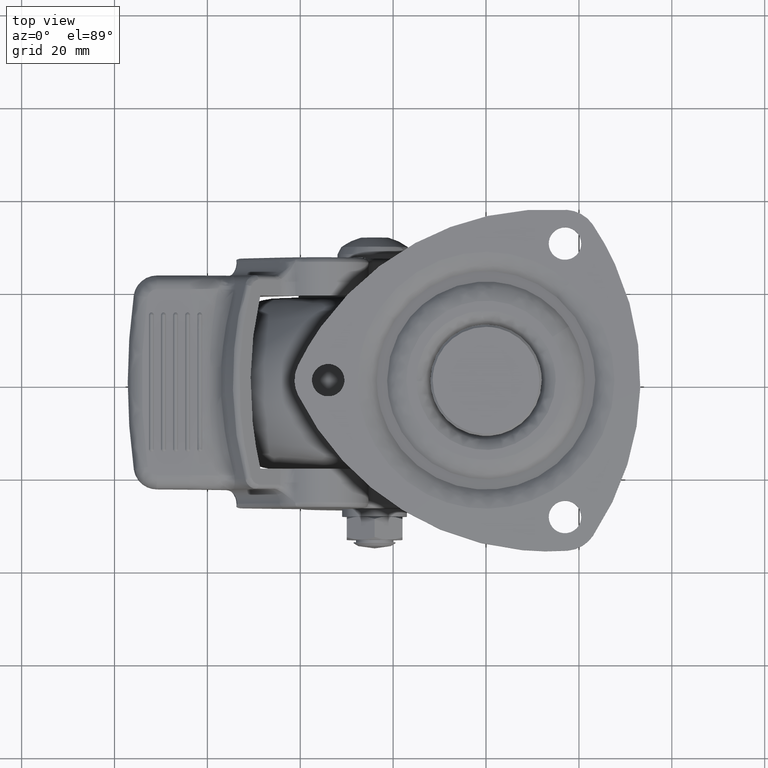
[diagram: clean part render]
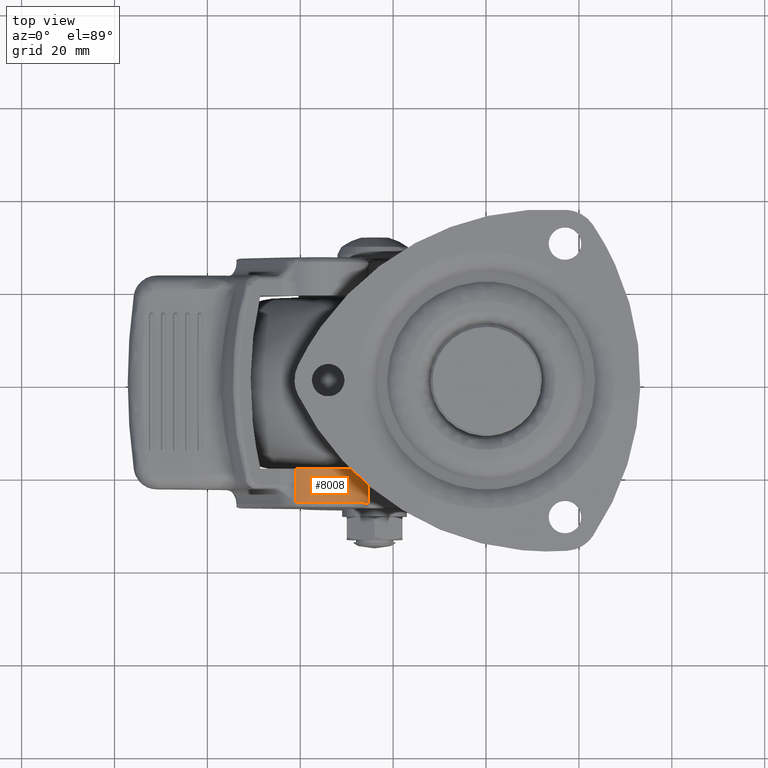
[diagram: same view with one face highlighted and labeled with its STEP entity id]
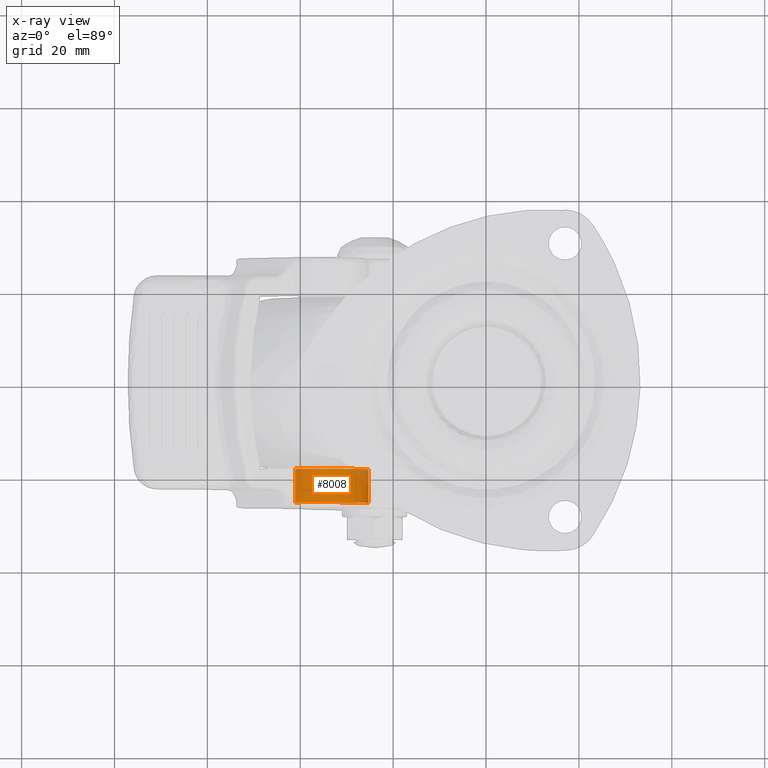
[diagram: x-ray of the same camera — body ghosted, the highlighted face saturated]
A machine part, top view. The second image highlights one B-rep face of the part: STEP entity #8008.
The next image is the same camera in x-ray: the body ghosted, the highlighted face saturated — about 6% of this face is hidden behind the body in this view.
In plain terms, the highlighted face is a freeform B-spline surface patch.
Its self-contained STEP definition (entity closure, byte-faithful):
#4443=CARTESIAN_POINT('',(-25.535646943787349,-25.899999999999999,-35.625522586329652));
#4444=VERTEX_POINT('',#4443);
#4458=CARTESIAN_POINT('',(-41.051118200829812,-25.899999999999999,-24.352873493018450));
#4459=VERTEX_POINT('',#4458);
#4460=CARTESIAN_POINT('',(-41.051118200829812,-25.899999999999999,-24.352873493018460));
#4461=CARTESIAN_POINT('',(-35.152821392697845,-25.899999999999999,-21.035278180738111));
#4462=CARTESIAN_POINT('',(-29.677960875453032,-25.899999999999999,-25.012996900003959));
#4463=CARTESIAN_POINT('',(-24.203100358208214,-25.899999999999999,-28.990715619269814));
#4464=CARTESIAN_POINT('',(-25.535646943787349,-25.899999999999999,-35.625522586329652));
#4472=(BOUNDED_CURVE()B_SPLINE_CURVE(2,(#4460,#4461,#4462,#4463,#4464),.UNSPECIFIED.,.F.,.U.)B_SPLINE_CURVE_WITH_KNOTS((3,2,3),(0.0,0.500000000000000,1.0),.UNSPECIFIED.)CURVE()GEOMETRIC_REPRESENTATION_ITEM()RATIONAL_B_SPLINE_CURVE((1.0,0.841716741239089,1.0,0.841716741239089,1.0))REPRESENTATION_ITEM(''));
#4473=EDGE_CURVE('',#4459,#4444,#4472,.T.);
#5156=CARTESIAN_POINT('',(-41.051118200829812,-18.649999999999999,-24.352873493018450));
#5157=VERTEX_POINT('',#5156);
#5158=CARTESIAN_POINT('',(-41.051118200829812,-18.649999999999999,-24.352873493018450));
#5159=CARTESIAN_POINT('',(-41.051118200829812,-25.899999999999999,-24.352873493018450));
#5160=QUASI_UNIFORM_CURVE('',1,(#5158,#5159),.UNSPECIFIED.,.F.,.U.);
#5161=EDGE_CURVE('',#5157,#4459,#5160,.T.);
#7566=CARTESIAN_POINT('',(-25.535646600386201,-18.649999999999999,-35.625522655298951));
#7567=VERTEX_POINT('',#7566);
#7568=CARTESIAN_POINT('',(-25.535646600386219,-18.649999999999999,-35.625522655298958));
#7569=CARTESIAN_POINT('',(-24.203100358208207,-18.649999999999995,-28.990715619269842));
#7570=CARTESIAN_POINT('',(-29.677960875453010,-18.649999999999999,-25.012996900003980));
#7571=CARTESIAN_POINT('',(-35.152821392697831,-18.649999999999995,-21.035278180738100));
#7572=CARTESIAN_POINT('',(-41.051118200829798,-18.649999999999999,-24.352873493018460));
#7580=(BOUNDED_CURVE()B_SPLINE_CURVE(2,(#7568,#7569,#7570,#7571,#7572),.UNSPECIFIED.,.F.,.U.)B_SPLINE_CURVE_WITH_KNOTS((3,2,3),(0.0,0.500000000000000,1.0),.UNSPECIFIED.)CURVE()GEOMETRIC_REPRESENTATION_ITEM()RATIONAL_B_SPLINE_CURVE((1.0,0.841716741239089,1.0,0.841716741239089,1.0))REPRESENTATION_ITEM(''));
#7581=EDGE_CURVE('',#7567,#5157,#7580,.T.);
#7980=CARTESIAN_POINT('',(-41.335410272618432,-18.468750000000000,-24.518667741872950));
#7981=CARTESIAN_POINT('',(-41.335410272618432,-26.085781250000000,-24.518667741872950));
#7982=CARTESIAN_POINT('',(-35.187470702629163,-18.468749999999996,-20.803594907095913));
#7983=CARTESIAN_POINT('',(-35.187470702629163,-26.085781250000004,-20.803594907095913));
#7984=CARTESIAN_POINT('',(-29.477674276591930,-18.468750000000000,-25.162167138589890));
#7985=CARTESIAN_POINT('',(-29.477674276591930,-26.085781250000000,-25.162167138589890));
#7986=CARTESIAN_POINT('',(-23.767877850554676,-18.468749999999996,-29.520739370083867));
#7987=CARTESIAN_POINT('',(-23.767877850554676,-26.085781250000004,-29.520739370083867));
#7988=CARTESIAN_POINT('',(-25.730522631566640,-18.468750000000000,-36.430656344078891));
#7989=CARTESIAN_POINT('',(-25.730522631566640,-26.085781250000000,-36.430656344078891));
#7997=(BOUNDED_SURFACE()B_SPLINE_SURFACE(1,2,((#7980,#7982,#7984,#7986,#7988),(#7981,#7983,#7985,#7987,#7989)),.UNSPECIFIED.,.F.,.F.,.U.)B_SPLINE_SURFACE_WITH_KNOTS((2,2),(3,2,3),(0.0,7.617031250000004),(0.0,13.002573763528840,26.005147527057670),.UNSPECIFIED.)GEOMETRIC_REPRESENTATION_ITEM()RATIONAL_B_SPLINE_SURFACE(((1.0,0.826589749127189,1.0,0.826589749127189,1.0),(1.0,0.826589749127189,1.0,0.826589749127189,1.0)))REPRESENTATION_ITEM('')SURFACE());
#7998=ORIENTED_EDGE('',*,*,#5161,.T.);
#7999=ORIENTED_EDGE('',*,*,#4473,.T.);
#8000=CARTESIAN_POINT('',(-25.535646600386201,-18.649999999999999,-35.625522655298951));
#8001=CARTESIAN_POINT('',(-25.535646943787349,-25.899999999999999,-35.625522586329652));
#8002=QUASI_UNIFORM_CURVE('',1,(#8000,#8001),.UNSPECIFIED.,.F.,.U.);
#8003=EDGE_CURVE('',#7567,#4444,#8002,.T.);
#8004=ORIENTED_EDGE('',*,*,#8003,.F.);
#8005=ORIENTED_EDGE('',*,*,#7581,.T.);
#8006=EDGE_LOOP('',(#7998,#7999,#8004,#8005));
#8007=FACE_OUTER_BOUND('',#8006,.T.);
#8008=ADVANCED_FACE('',(#8007),#7997,.T.);